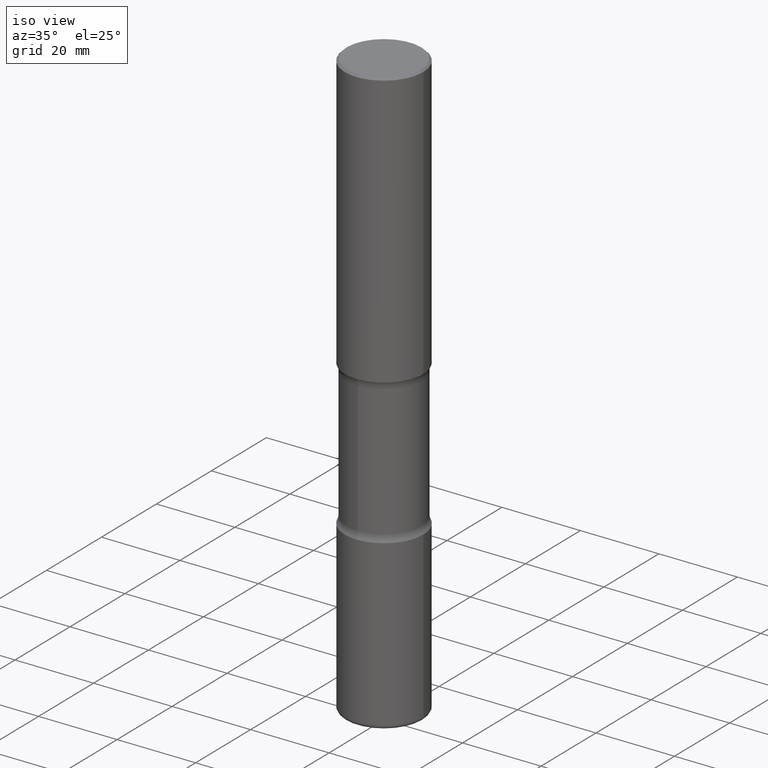
[diagram: clean part render]
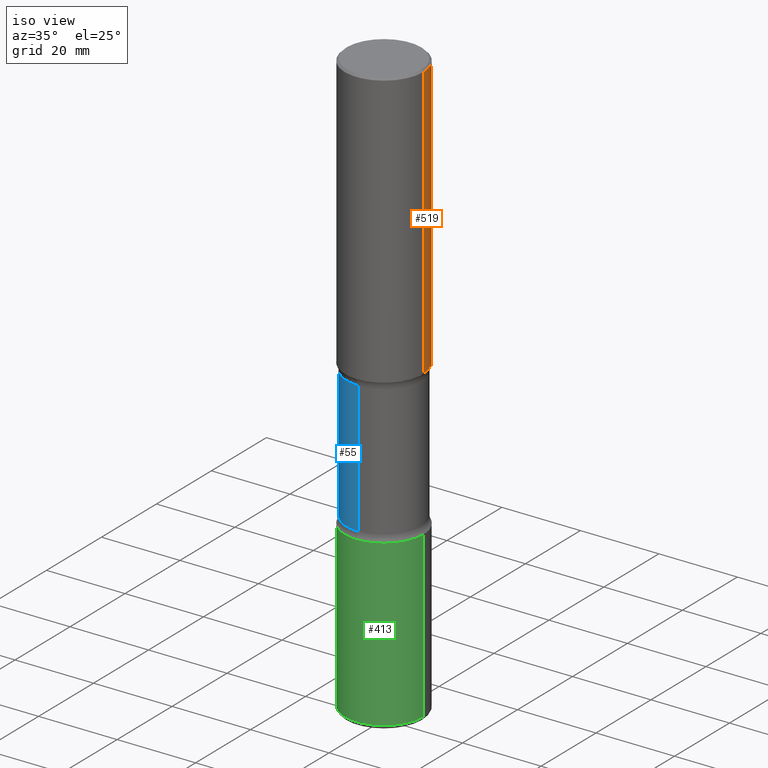
[diagram: same view with three faces highlighted in distinct colors, each labeled with its STEP entity id]
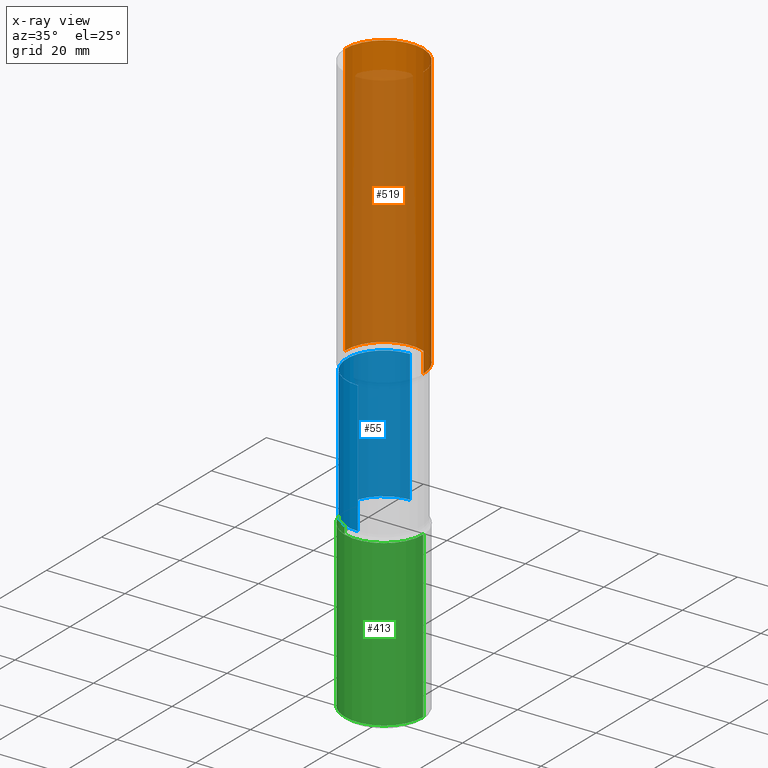
[diagram: x-ray of the same camera — body ghosted, the three highlighted faces saturated]
A machine part, iso view with three faces highlighted in distinct colors.
The next image is the same camera in x-ray (body ghosted, the three faces saturated) — at least one of them is partly hidden behind the body in this view.
Their STEP definitions:

[orange] entity #519 — the highlighted cylindrical surface (partial cylindrical patch) has radius 10 mm, axis along (-0, 0, 1).
#1 = DIRECTION ( 'NONE',  ( -2.445468806185136597E-29, 3.491481338843145583E-15, 1.000000000000000000 ) ) ;
#23 = CARTESIAN_POINT ( 'NONE',  ( 6.739467482965614869E-29, -9.622173421717819657E-15, -2.755899999999998240 ) ) ;
#24 = CARTESIAN_POINT ( 'NONE',  ( -0.3936999999999999389, 2.679362779428219524E-15, -0.02000000000000010103 ) ) ;
#42 = EDGE_CURVE ( 'NONE', #408, #417, #52, .T. ) ;
#52 = CIRCLE ( 'NONE', #310, 0.3936999999999999389 ) ;
#88 = DIRECTION ( 'NONE',  ( -2.445468806185136877E-29, 3.491481338843145188E-15, 1.000000000000000000 ) ) ;
#127 = DIRECTION ( 'NONE',  ( 1.000000000000000000, -6.982962677686266711E-15, 4.876176775795935793E-29 ) ) ;
#142 = EDGE_CURVE ( 'NONE', #336, #489, #226, .T. ) ;
#159 = FACE_OUTER_BOUND ( 'NONE', #364, .T. ) ;
#161 = CARTESIAN_POINT ( 'NONE',  ( 0.000000000000000000, 0.000000000000000000, 0.000000000000000000 ) ) ;
#181 = VECTOR ( 'NONE', #88, 39.37007874015748143 ) ;
#207 = CARTESIAN_POINT ( 'NONE',  ( 0.3936999999999999389, -2.770807688499514945E-15, -0.02000000000000010103 ) ) ;
#226 = CIRCLE ( 'NONE', #301, 0.3937000000000002164 ) ;
#231 = DIRECTION ( 'NONE',  ( 1.000000000000000000, -6.982962677686265133E-15, 0.000000000000000000 ) ) ;
#237 = CARTESIAN_POINT ( 'NONE',  ( 0.3937000000000001054, -2.749192406205084005E-15, 1.919750796630860452E-29 ) ) ;
#270 = ORIENTED_EDGE ( 'NONE', *, *, #142, .T. ) ;
#301 = AXIS2_PLACEMENT_3D ( 'NONE', #23, #459, #231 ) ;
#304 = EDGE_CURVE ( 'NONE', #489, #417, #465, .T. ) ;
#306 = DIRECTION ( 'NONE',  ( -2.445468806185136877E-29, 3.491481338843145188E-15, 1.000000000000000000 ) ) ;
#310 = AXIS2_PLACEMENT_3D ( 'NONE', #529, #356, #315 ) ;
#315 = DIRECTION ( 'NONE',  ( 1.000000000000000000, -6.982962677686266711E-15, 0.000000000000000000 ) ) ;
#322 = ORIENTED_EDGE ( 'NONE', *, *, #42, .F. ) ;
#336 = VERTEX_POINT ( 'NONE', #472 ) ;
#349 = CYLINDRICAL_SURFACE ( 'NONE', #430, 0.3937000000000001054 ) ;
#356 = DIRECTION ( 'NONE',  ( -2.445468806185136597E-29, 3.491481338843145583E-15, 1.000000000000000000 ) ) ;
#364 = EDGE_LOOP ( 'NONE', ( #270, #537, #322, #454 ) ) ;
#380 = CARTESIAN_POINT ( 'NONE',  ( -0.3937000000000002720, -2.048594773559823141E-15, -2.755899999999998240 ) ) ;
#383 = CARTESIAN_POINT ( 'NONE',  ( -0.3937000000000001054, 2.797406750687515181E-15, -1.936584745033357016E-29 ) ) ;
#408 = VERTEX_POINT ( 'NONE', #207 ) ;
#412 = VECTOR ( 'NONE', #306, 39.37007874015748143 ) ;
#417 = VERTEX_POINT ( 'NONE', #24 ) ;
#430 = AXIS2_PLACEMENT_3D ( 'NONE', #161, #1, #127 ) ;
#454 = ORIENTED_EDGE ( 'NONE', *, *, #470, .F. ) ;
#459 = DIRECTION ( 'NONE',  ( -2.445468806185136597E-29, 3.491481338843145583E-15, 1.000000000000000000 ) ) ;
#465 = LINE ( 'NONE', #383, #412 ) ;
#470 = EDGE_CURVE ( 'NONE', #336, #408, #473, .T. ) ;
#472 = CARTESIAN_POINT ( 'NONE',  ( 0.3937000000000002164, -1.237136582792290287E-14, -2.755899999999998240 ) ) ;
#473 = LINE ( 'NONE', #237, #181 ) ;
#489 = VERTEX_POINT ( 'NONE', #380 ) ;
#519 = ADVANCED_FACE ( 'NONE', ( #159 ), #349, .T. ) ;
#529 = CARTESIAN_POINT ( 'NONE',  ( 4.890937612370298557E-31, -6.982962677686327354E-17, -0.02000000000000010103 ) ) ;
#537 = ORIENTED_EDGE ( 'NONE', *, *, #304, .T. ) ;

[blue] entity #55 — the highlighted cylindrical surface (partial cylindrical patch) has radius 9.4996 mm, axis along (0, -0, -1).
#3 = CARTESIAN_POINT ( 'NONE',  ( 1.453329336974072664E-28, -2.048779909082575425E-14, -5.905499999999998195 ) ) ;
#20 = CARTESIAN_POINT ( 'NONE',  ( 2.611628041454809941E-15, 0.3739999999999796820, -5.905499999999999972 ) ) ;
#35 = CARTESIAN_POINT ( 'NONE',  ( -2.633402156444536217E-15, -0.3740000000000101577, -2.823256588393413313 ) ) ;
#41 = CARTESIAN_POINT ( 'NONE',  ( 2.611628041454733028E-15, 0.3739999999999901736, -2.823256588393415534 ) ) ;
#48 = CARTESIAN_POINT ( 'NONE',  ( -2.633402156444500718E-15, -0.3740000000000146541, -4.145243411606582384 ) ) ;
#49 = CARTESIAN_POINT ( 'NONE',  ( -2.565826251166408560E-15, -0.3740000000000206493, -5.905499999999997307 ) ) ;
#55 = ADVANCED_FACE ( 'NONE', ( #222 ), #397, .T. ) ;
#56 = VERTEX_POINT ( 'NONE', #171 ) ;
#59 = DIRECTION ( 'NONE',  ( 2.499563752616943710E-29, -3.414014296659653741E-15, -1.000000000000000000 ) ) ;
#63 = EDGE_CURVE ( 'NONE', #374, #543, #133, .T. ) ;
#86 = DIRECTION ( 'NONE',  ( 6.982962677686266711E-15, 1.000000000000000000, -2.921762560068729411E-15 ) ) ;
#116 = CIRCLE ( 'NONE', #559, 0.3740000000000001656 ) ;
#133 = LINE ( 'NONE', #49, #138 ) ;
#138 = VECTOR ( 'NONE', #59, 39.37007874015748143 ) ;
#141 = DIRECTION ( 'NONE',  ( 6.982962677686266711E-15, 1.000000000000000000, -2.921762560068729411E-15 ) ) ;
#171 = CARTESIAN_POINT ( 'NONE',  ( 2.611628041454766160E-15, 0.3739999999999856772, -4.145243411606584161 ) ) ;
#204 = DIRECTION ( 'NONE',  ( 2.499563752616943710E-29, -3.414014296659653741E-15, -1.000000000000000000 ) ) ;
#214 = AXIS2_PLACEMENT_3D ( 'NONE', #248, #204, #86 ) ;
#222 = FACE_OUTER_BOUND ( 'NONE', #410, .T. ) ;
#225 = LINE ( 'NONE', #20, #460 ) ;
#230 = ORIENTED_EDGE ( 'NONE', *, *, #244, .T. ) ;
#239 = ORIENTED_EDGE ( 'NONE', *, *, #557, .F. ) ;
#244 = EDGE_CURVE ( 'NONE', #500, #56, #225, .T. ) ;
#248 = CARTESIAN_POINT ( 'NONE',  ( 1.013341980608738414E-28, -1.447825793226129018E-14, -4.145243411606583273 ) ) ;
#265 = ORIENTED_EDGE ( 'NONE', *, *, #321, .T. ) ;
#314 = DIRECTION ( 'NONE',  ( 2.499563752616943710E-29, -3.414014296659653741E-15, -1.000000000000000000 ) ) ;
#321 = EDGE_CURVE ( 'NONE', #374, #500, #116, .T. ) ;
#374 = VERTEX_POINT ( 'NONE', #35 ) ;
#384 = CARTESIAN_POINT ( 'NONE',  ( 6.829029461346524548E-29, -9.964976017815853586E-15, -2.823256588393414646 ) ) ;
#387 = AXIS2_PLACEMENT_3D ( 'NONE', #3, #314, #141 ) ;
#389 = DIRECTION ( 'NONE',  ( 2.499563752616943710E-29, -3.414014296659653741E-15, -1.000000000000000000 ) ) ;
#397 = CYLINDRICAL_SURFACE ( 'NONE', #387, 0.3740000000000001656 ) ;
#410 = EDGE_LOOP ( 'NONE', ( #495, #265, #230, #239 ) ) ;
#460 = VECTOR ( 'NONE', #531, 39.37007874015748143 ) ;
#468 = DIRECTION ( 'NONE',  ( 6.982962677686266711E-15, 1.000000000000000000, -2.921762560068729411E-15 ) ) ;
#495 = ORIENTED_EDGE ( 'NONE', *, *, #63, .F. ) ;
#500 = VERTEX_POINT ( 'NONE', #41 ) ;
#513 = CIRCLE ( 'NONE', #214, 0.3740000000000001656 ) ;
#531 = DIRECTION ( 'NONE',  ( 2.499563752616943710E-29, -3.414014296659653741E-15, -1.000000000000000000 ) ) ;
#543 = VERTEX_POINT ( 'NONE', #48 ) ;
#557 = EDGE_CURVE ( 'NONE', #543, #56, #513, .T. ) ;
#559 = AXIS2_PLACEMENT_3D ( 'NONE', #384, #389, #468 ) ;

[green] entity #413 — the highlighted cylindrical surface (partial cylindrical patch) has radius 10 mm, axis along (-0, 0, 1).
#7 = AXIS2_PLACEMENT_3D ( 'NONE', #196, #28, #375 ) ;
#8 = DIRECTION ( 'NONE',  ( -2.445468806185136877E-29, 3.491481338843145188E-15, 1.000000000000000000 ) ) ;
#11 = EDGE_CURVE ( 'NONE', #360, #243, #505, .T. ) ;
#28 = DIRECTION ( 'NONE',  ( -2.445468806185136597E-29, 3.491481338843145583E-15, 1.000000000000000000 ) ) ;
#45 = VECTOR ( 'NONE', #184, 39.37007874015748143 ) ;
#57 = EDGE_LOOP ( 'NONE', ( #119, #94, #197, #458 ) ) ;
#61 = AXIS2_PLACEMENT_3D ( 'NONE', #144, #278, #233 ) ;
#94 = ORIENTED_EDGE ( 'NONE', *, *, #11, .T. ) ;
#96 = LINE ( 'NONE', #520, #251 ) ;
#97 = EDGE_CURVE ( 'NONE', #360, #122, #96, .T. ) ;
#104 = LINE ( 'NONE', #150, #45 ) ;
#119 = ORIENTED_EDGE ( 'NONE', *, *, #97, .F. ) ;
#122 = VERTEX_POINT ( 'NONE', #494 ) ;
#132 = EDGE_CURVE ( 'NONE', #122, #156, #381, .T. ) ;
#144 = CARTESIAN_POINT ( 'NONE',  ( 0.000000000000000000, 0.000000000000000000, 0.000000000000000000 ) ) ;
#150 = CARTESIAN_POINT ( 'NONE',  ( 0.3937000000000002164, -2.749192406205084794E-15, 1.919750796630861012E-29 ) ) ;
#156 = VERTEX_POINT ( 'NONE', #542 ) ;
#184 = DIRECTION ( 'NONE',  ( -2.445468806185136877E-29, 3.491481338843145188E-15, 1.000000000000000000 ) ) ;
#189 = EDGE_CURVE ( 'NONE', #243, #156, #104, .T. ) ;
#192 = AXIS2_PLACEMENT_3D ( 'NONE', #522, #275, #311 ) ;
#196 = CARTESIAN_POINT ( 'NONE',  ( 1.030178189293550378E-28, -1.470821428801063089E-14, -4.212599999999998346 ) ) ;
#197 = ORIENTED_EDGE ( 'NONE', *, *, #189, .T. ) ;
#233 = DIRECTION ( 'NONE',  ( 1.000000000000000000, -6.982962677686266711E-15, 4.876176775795935793E-29 ) ) ;
#243 = VERTEX_POINT ( 'NONE', #463 ) ;
#251 = VECTOR ( 'NONE', #8, 39.37007874015748143 ) ;
#275 = DIRECTION ( 'NONE',  ( -2.445468806185136597E-29, 3.491481338843145583E-15, 1.000000000000000000 ) ) ;
#278 = DIRECTION ( 'NONE',  ( -2.445468806185136597E-29, 3.491481338843145583E-15, 1.000000000000000000 ) ) ;
#307 = CARTESIAN_POINT ( 'NONE',  ( -0.3937000000000004385, -1.768397193110025560E-14, -5.866099999999998538 ) ) ;
#311 = DIRECTION ( 'NONE',  ( 1.000000000000000000, -6.982962677686265133E-15, 0.000000000000000000 ) ) ;
#360 = VERTEX_POINT ( 'NONE', #307 ) ;
#375 = DIRECTION ( 'NONE',  ( 1.000000000000000000, -6.982962677686269077E-15, 0.000000000000000000 ) ) ;
#381 = CIRCLE ( 'NONE', #7, 0.3937000000000002720 ) ;
#413 = ADVANCED_FACE ( 'NONE', ( #556 ), #438, .T. ) ;
#438 = CYLINDRICAL_SURFACE ( 'NONE', #61, 0.3937000000000002164 ) ;
#458 = ORIENTED_EDGE ( 'NONE', *, *, #132, .F. ) ;
#463 = CARTESIAN_POINT ( 'NONE',  ( 0.3937000000000004385, -2.323057108799285912E-14, -5.866099999999998538 ) ) ;
#494 = CARTESIAN_POINT ( 'NONE',  ( -0.3937000000000002720, -1.479738973421168625E-14, -4.212599999999998346 ) ) ;
#505 = CIRCLE ( 'NONE', #192, 0.3937000000000002164 ) ;
#520 = CARTESIAN_POINT ( 'NONE',  ( -0.3937000000000002164, 2.797406750687515970E-15, -1.936584745033357576E-29 ) ) ;
#522 = CARTESIAN_POINT ( 'NONE',  ( 1.434536456396262699E-28, -2.048137868178777275E-14, -5.866099999999998538 ) ) ;
#542 = CARTESIAN_POINT ( 'NONE',  ( 0.3937000000000002720, -1.745740669421571411E-14, -4.212599999999998346 ) ) ;
#556 = FACE_OUTER_BOUND ( 'NONE', #57, .T. ) ;